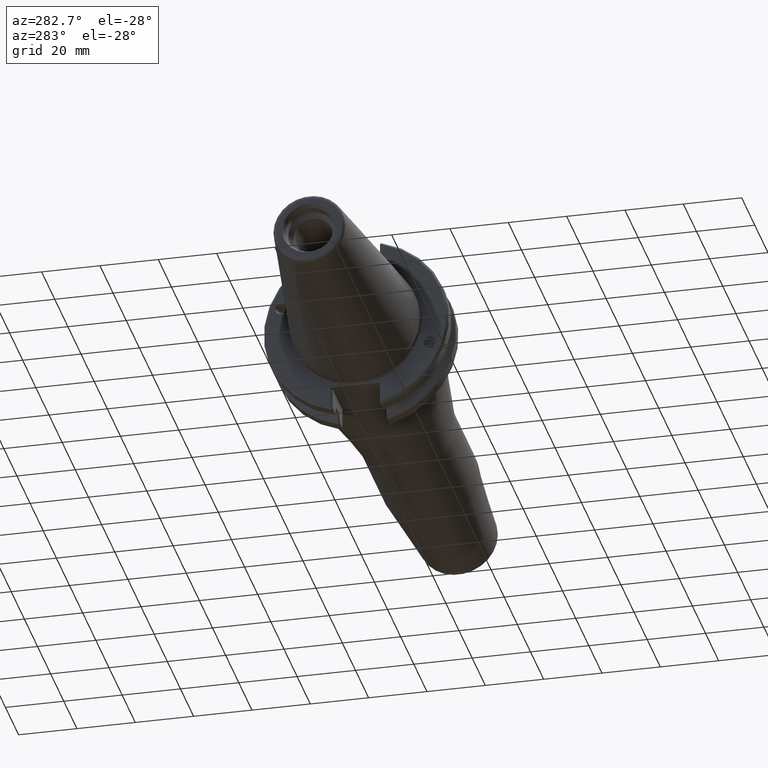
[diagram: clean part render]
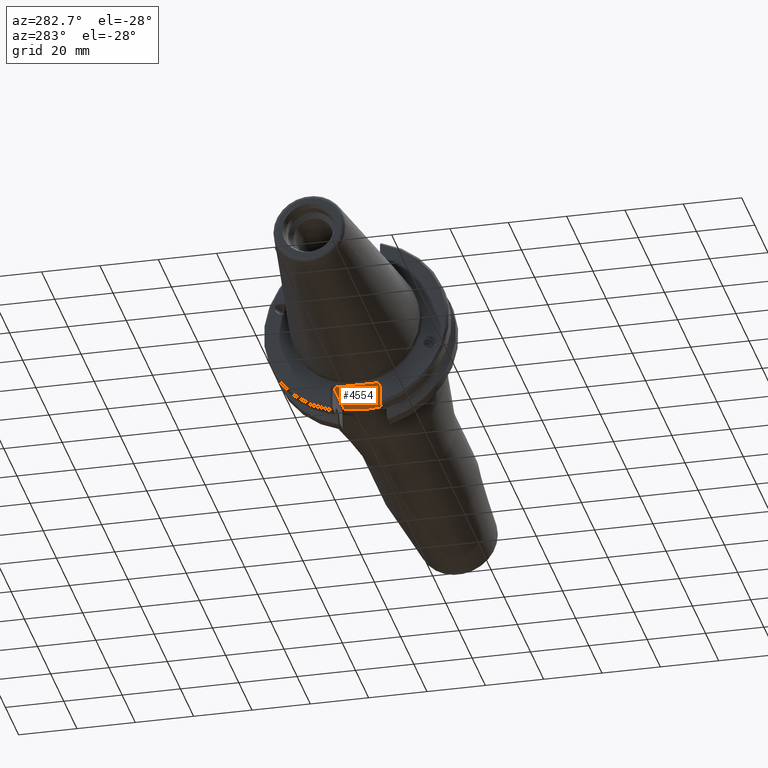
[diagram: same view with one face highlighted and labeled with its STEP entity id]
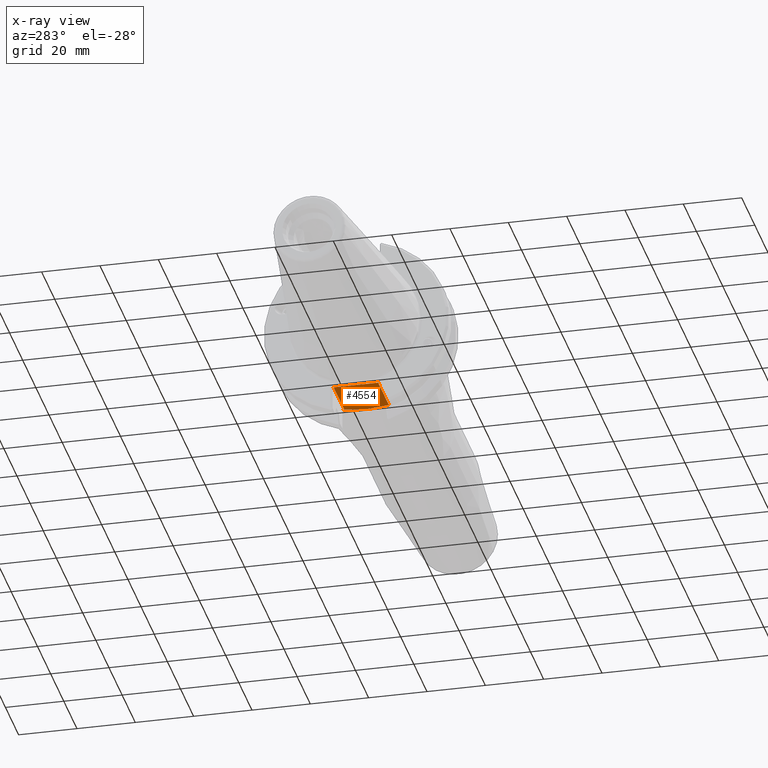
[diagram: x-ray of the same camera — body ghosted, the highlighted face saturated]
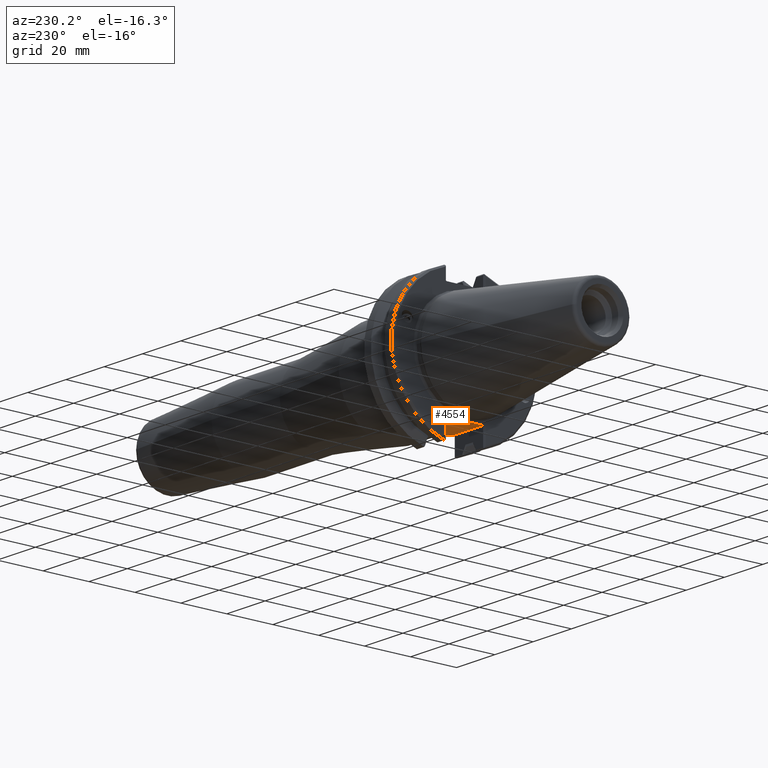
[diagram: same view with one face highlighted and labeled with its STEP entity id]
A machine part, auxiliary view. The second image highlights one B-rep face of the part: STEP entity #4554.
The next image is the same camera in x-ray: the body ghosted, the highlighted face saturated — about 0% of this face is hidden behind the body in this view.
A second angle (auxiliary view) of the same face is appended — the face is thin or edge-on in the first view.
In plain terms, the highlighted planar face has unit normal (0, 0, 1).
Its self-contained STEP definition (entity closure, byte-faithful):
#410=CARTESIAN_POINT('',(19.325102362057475,8.223491266684036,-22.555200000000006));
#411=VERTEX_POINT('',#410);
#412=CARTESIAN_POINT('',(19.325102361839747,-8.223491268076849,-22.555200000000006));
#413=VERTEX_POINT('',#412);
#414=CARTESIAN_POINT('',(19.325102361839750,-8.223491268076854,-22.555200000000006));
#415=CARTESIAN_POINT('',(19.379001482295411,-7.878692955161998,-22.555200000000006));
#416=CARTESIAN_POINT('',(19.437705024760373,-7.542506030815446,-22.555200000000006));
#417=CARTESIAN_POINT('',(19.497346476869449,-7.222550791009994,-22.555200000000006));
#418=CARTESIAN_POINT('',(19.536138572988445,-7.014444952245198,-22.555200000000006));
#419=CARTESIAN_POINT('',(19.577047895266020,-6.803954918851549,-22.555200000000006));
#420=CARTESIAN_POINT('',(19.619981473682930,-6.590207144475980,-22.555200000000006));
#421=CARTESIAN_POINT('',(19.806119276295448,-5.663507286168461,-22.555200000000006));
#422=CARTESIAN_POINT('',(20.032448633461076,-4.685987690119468,-22.555200000000006));
#423=CARTESIAN_POINT('',(20.238818001424491,-3.706307989633572,-22.555200000000006));
#424=CARTESIAN_POINT('',(20.453330926020634,-2.687969077261847,-22.555200000000006));
#425=CARTESIAN_POINT('',(20.640128355569168,-1.665352639393291,-22.555200000000006));
#426=CARTESIAN_POINT('',(20.697735468046062,-0.687764278622114,-22.555200000000006));
#427=CARTESIAN_POINT('',(20.723892729547359,-0.243877520653275,-22.555200000000006));
#428=CARTESIAN_POINT('',(20.725042450655305,0.183714360963328,-22.555200000000006));
#429=CARTESIAN_POINT('',(20.701179333246507,0.626705083078294,-22.555200000000006));
#430=CARTESIAN_POINT('',(20.651071860589184,1.556891408509578,-22.555200000000006));
#431=CARTESIAN_POINT('',(20.482529105537523,2.529215411539623,-22.555200000000006));
#432=CARTESIAN_POINT('',(20.281807517948454,3.500354831027874,-22.555200000000006));
#433=CARTESIAN_POINT('',(20.114177290537764,4.311390274159098,-22.555200000000006));
#434=CARTESIAN_POINT('',(19.927747758898715,5.122786234167696,-22.555200000000006));
#435=CARTESIAN_POINT('',(19.761143624720045,5.907967818462419,-22.555200000000006));
#436=CARTESIAN_POINT('',(19.681524817916184,6.283199928842517,-22.555200000000006));
#437=CARTESIAN_POINT('',(19.606065602352992,6.652353723379310,-22.555200000000006));
#438=CARTESIAN_POINT('',(19.537125571272590,7.012129892884540,-22.555200000000006));
#439=CARTESIAN_POINT('',(19.497413355767772,7.219375357572913,-22.555200000000006));
#440=CARTESIAN_POINT('',(19.459655630968207,7.424102693184540,-22.555200000000006));
#441=CARTESIAN_POINT('',(19.422292097612583,7.637635979679540,-22.555200000000006));
#442=CARTESIAN_POINT('',(19.388791635498393,7.829091742341448,-22.555200000000006));
#443=CARTESIAN_POINT('',(19.356152073684427,8.024863012796374,-22.555200000000006));
#444=CARTESIAN_POINT('',(19.325102362057478,8.223491266684036,-22.555200000000006));
#445=B_SPLINE_CURVE_WITH_KNOTS('',3,(#414,#415,#416,#417,#418,#419,#420,#421,#422,#423,#424,#425,#426,#427,#428,#429,#430,#431,#432,#433,#434,#435,#436,#437,#438,#439,#440,#441,#442,#443,#444),.UNSPECIFIED.,.F.,.U.,(4,3,3,3,3,3,3,3,3,3,4),(6.238622313871780,6.336104615721161,6.399509222576244,6.674398822527864,6.960135860968277,7.089878493669917,7.362310435784494,7.589828706037006,7.698557899900568,7.761190264735722,7.817346976289517),.UNSPECIFIED.);
#446=EDGE_CURVE('',#411,#413,#445,.F.);
#3502=CARTESIAN_POINT('',(3.174999999999999,-8.044579510308394,-22.555200000000006));
#3503=VERTEX_POINT('',#3502);
#3511=CARTESIAN_POINT('',(3.599579510314385,-7.619999999993869,-22.555200000000006));
#3512=VERTEX_POINT('',#3511);
#3513=CARTESIAN_POINT('',(3.174999999999999,-8.044579510308394,-22.555200000000006));
#3514=DIRECTION('',(0.707106781186432,0.707106781186663,0.0));
#3515=VECTOR('',#3514,0.600446101792430);
#3516=LINE('',#3513,#3515);
#3517=EDGE_CURVE('',#3503,#3512,#3516,.T.);
#3542=CARTESIAN_POINT('',(18.976676515812926,-7.619999999991375,-22.555200000000006));
#3543=VERTEX_POINT('',#3542);
#3544=CARTESIAN_POINT('',(3.599579510314385,-7.619999999993870,-22.555200000000006));
#3545=DIRECTION('',(1.0,1.623051E-013,0.0));
#3546=VECTOR('',#3545,15.377097005498541);
#3547=LINE('',#3544,#3546);
#3548=EDGE_CURVE('',#3512,#3543,#3547,.T.);
#3565=CARTESIAN_POINT('',(18.976676515812930,-7.619999999991374,-22.555200000000006));
#3566=DIRECTION('',(0.499999999999995,-0.866025403784441,0.0));
#3567=VECTOR('',#3566,0.696851692137513);
#3568=LINE('',#3565,#3567);
#3569=EDGE_CURVE('',#3543,#413,#3568,.T.);
#3639=CARTESIAN_POINT('',(18.976676515812919,7.620000000008629,-22.555200000000006));
#3640=VERTEX_POINT('',#3639);
#3641=CARTESIAN_POINT('',(19.325102361325531,8.223491267106624,-22.555200000000006));
#3642=DIRECTION('',(-0.499999999999995,-0.866025403784441,0.0));
#3643=VECTOR('',#3642,0.696851691025230);
#3644=LINE('',#3641,#3643);
#3645=EDGE_CURVE('',#411,#3640,#3644,.T.);
#3671=CARTESIAN_POINT('',(3.599579510314548,7.620000000006133,-22.555200000000006));
#3672=VERTEX_POINT('',#3671);
#3673=CARTESIAN_POINT('',(18.976676515812919,7.620000000008629,-22.555200000000006));
#3674=DIRECTION('',(-1.0,-1.624206E-013,0.0));
#3675=VECTOR('',#3674,15.377097005498371);
#3676=LINE('',#3673,#3675);
#3677=EDGE_CURVE('',#3640,#3672,#3676,.T.);
#3694=CARTESIAN_POINT('',(3.174999999999999,8.044579510320546,-22.555200000000006));
#3695=VERTEX_POINT('',#3694);
#3696=CARTESIAN_POINT('',(3.599579510314547,7.620000000006133,-22.555200000000006));
#3697=DIRECTION('',(-0.707106781186662,0.707106781186433,0.0));
#3698=VECTOR('',#3697,0.600446101792467);
#3699=LINE('',#3696,#3698);
#3700=EDGE_CURVE('',#3672,#3695,#3699,.T.);
#4067=CARTESIAN_POINT('',(3.174999999999999,-2.837647257852875,-22.555200000000006));
#4068=VERTEX_POINT('',#4067);
#4069=CARTESIAN_POINT('',(3.174999999999999,2.837647257852875,-22.555200000000006));
#4070=VERTEX_POINT('',#4069);
#4071=CARTESIAN_POINT('',(3.174999999999999,2.837647257852875,-22.555200000000006));
#4072=CARTESIAN_POINT('',(3.174999999999999,2.755241823621724,-22.555200000000006));
#4073=CARTESIAN_POINT('',(3.174794178542011,2.671369764946889,-22.555200000000006));
#4074=CARTESIAN_POINT('',(3.174397958557634,2.583843205409750,-22.555200000000006));
#4075=CARTESIAN_POINT('',(3.173726250173844,2.435460170319210,-22.555200000000006));
#4076=CARTESIAN_POINT('',(3.172502151581716,2.281587889015467,-22.555200000000006));
#4077=CARTESIAN_POINT('',(3.171121426351276,2.137063620258249,-22.555200000000006));
#4078=CARTESIAN_POINT('',(3.169931830793546,2.012545414674999,-22.555200000000006));
#4079=CARTESIAN_POINT('',(3.168675060574849,1.897488897855947,-22.555200000000006));
#4080=CARTESIAN_POINT('',(3.167296418762064,1.774834135203758,-22.555200000000006));
#4081=CARTESIAN_POINT('',(3.160841950335214,1.200594121880728,-22.555200000000006));
#4082=CARTESIAN_POINT('',(3.153966369007392,0.551580967680836,-22.555200000000006));
#4083=CARTESIAN_POINT('',(3.153966369007392,1.804112E-015,-22.555200000000006));
#4084=CARTESIAN_POINT('',(3.153966369007392,-0.536783616597188,-22.555200000000006));
#4085=CARTESIAN_POINT('',(3.160404587520339,-1.165842668866377,-22.555200000000006));
#4086=CARTESIAN_POINT('',(3.166773218104312,-1.728460363155368,-22.555200000000006));
#4087=CARTESIAN_POINT('',(3.168002883437818,-1.837091483387996,-22.555200000000006));
#4088=CARTESIAN_POINT('',(3.169151544363213,-1.940577422866739,-22.555200000000006));
#4089=CARTESIAN_POINT('',(3.170228867505570,-2.046610839349337,-22.555200000000006));
#4090=CARTESIAN_POINT('',(3.171837652399180,-2.204952335923852,-22.555200000000006));
#4091=CARTESIAN_POINT('',(3.173372126843618,-2.379295503713108,-22.555200000000006));
#4092=CARTESIAN_POINT('',(3.174226660580652,-2.548127691365853,-22.555200000000006));
#4093=CARTESIAN_POINT('',(3.174732419505676,-2.648051640575030,-22.555200000000006));
#4094=CARTESIAN_POINT('',(3.174999999999999,-2.744705363948436,-22.555200000000006));
#4095=CARTESIAN_POINT('',(3.174999999999999,-2.837647257852874,-22.555200000000006));
#4096=B_SPLINE_CURVE_WITH_KNOTS('',3,(#4071,#4072,#4073,#4074,#4075,#4076,#4077,#4078,#4079,#4080,#4081,#4082,#4083,#4084,#4085,#4086,#4087,#4088,#4089,#4090,#4091,#4092,#4093,#4094,#4095),.UNSPECIFIED.,.F.,.U.,(4,3,3,3,3,3,3,3,4),(2.310521099154615,2.334719408664304,2.375742597832209,2.411087069362252,2.576561359666502,2.737596444645659,2.768689355259054,2.815120925255582,2.842601620178389),.UNSPECIFIED.);
#4097=EDGE_CURVE('',#4068,#4070,#4096,.F.);
#4126=CARTESIAN_POINT('',(3.174999999999999,-8.044579510308394,-22.555200000000006));
#4127=DIRECTION('',(0.0,1.0,0.0));
#4128=VECTOR('',#4127,5.206932252455520);
#4129=LINE('',#4126,#4128);
#4130=EDGE_CURVE('',#3503,#4068,#4129,.T.);
#4155=CARTESIAN_POINT('',(3.174999999999999,2.837647257852876,-22.555200000000006));
#4156=DIRECTION('',(0.0,1.0,0.0));
#4157=VECTOR('',#4156,5.206932252467670);
#4158=LINE('',#4155,#4157);
#4159=EDGE_CURVE('',#4070,#3695,#4158,.T.);
#4537=CARTESIAN_POINT('',(13.796340982085296,7.785941E-012,-22.555200000000006));
#4538=DIRECTION('',(0.0,0.0,1.0));
#4539=DIRECTION('',(1.0,0.0,0.0));
#4540=AXIS2_PLACEMENT_3D('',#4537,#4538,#4539);
#4541=PLANE('',#4540);
#4542=ORIENTED_EDGE('',*,*,#3517,.F.);
#4543=ORIENTED_EDGE('',*,*,#4130,.T.);
#4544=ORIENTED_EDGE('',*,*,#4097,.T.);
#4545=ORIENTED_EDGE('',*,*,#4159,.T.);
#4546=ORIENTED_EDGE('',*,*,#3700,.F.);
#4547=ORIENTED_EDGE('',*,*,#3677,.F.);
#4548=ORIENTED_EDGE('',*,*,#3645,.F.);
#4549=ORIENTED_EDGE('',*,*,#446,.T.);
#4550=ORIENTED_EDGE('',*,*,#3569,.F.);
#4551=ORIENTED_EDGE('',*,*,#3548,.F.);
#4552=EDGE_LOOP('',(#4542,#4543,#4544,#4545,#4546,#4547,#4548,#4549,#4550,#4551));
#4553=FACE_OUTER_BOUND('',#4552,.T.);
#4554=ADVANCED_FACE('',(#4553),#4541,.F.);